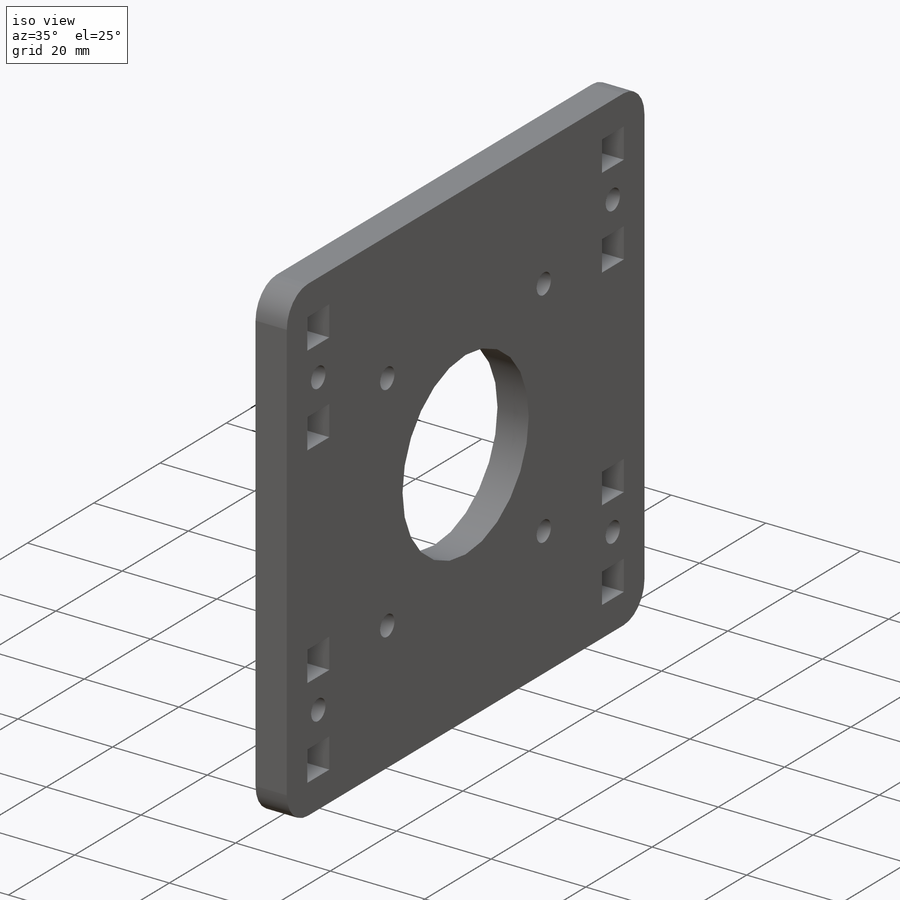
[diagram: iso view]
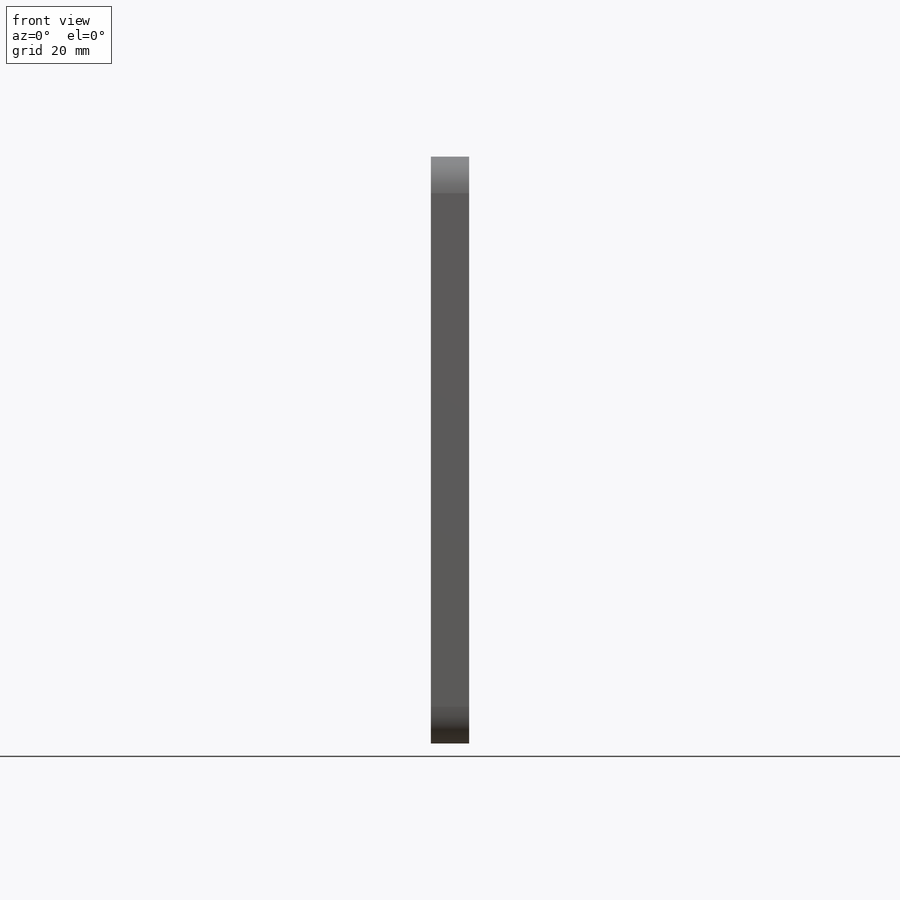
[diagram: front view]
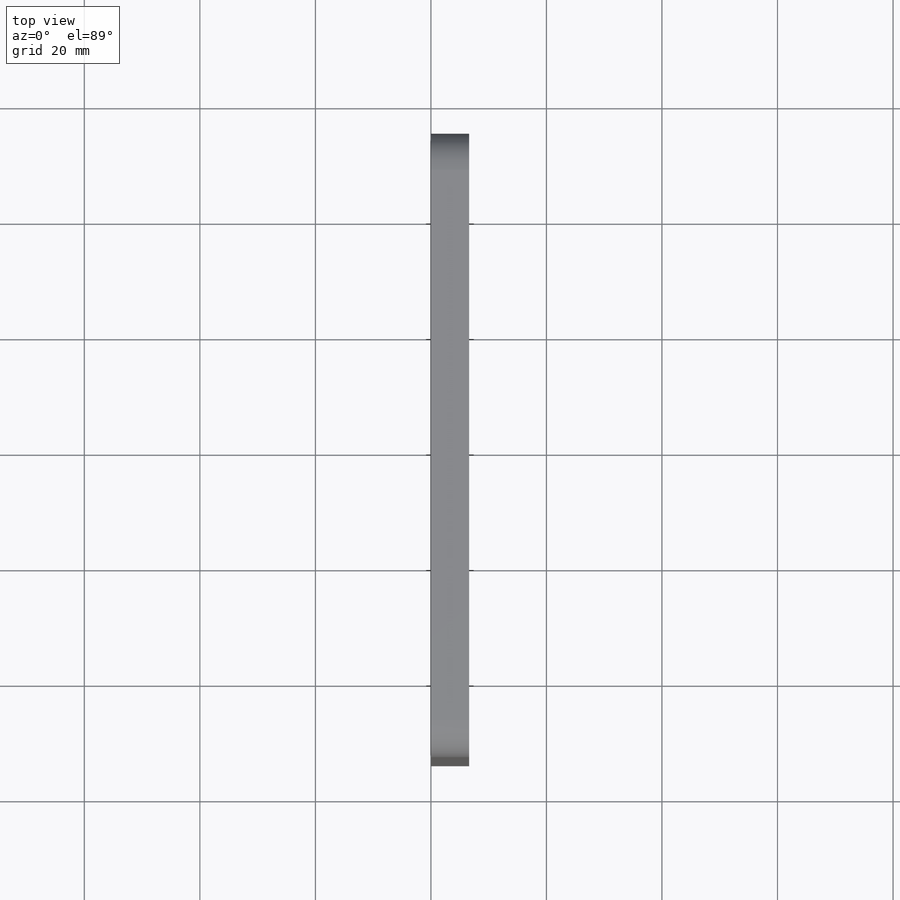
[diagram: top view]
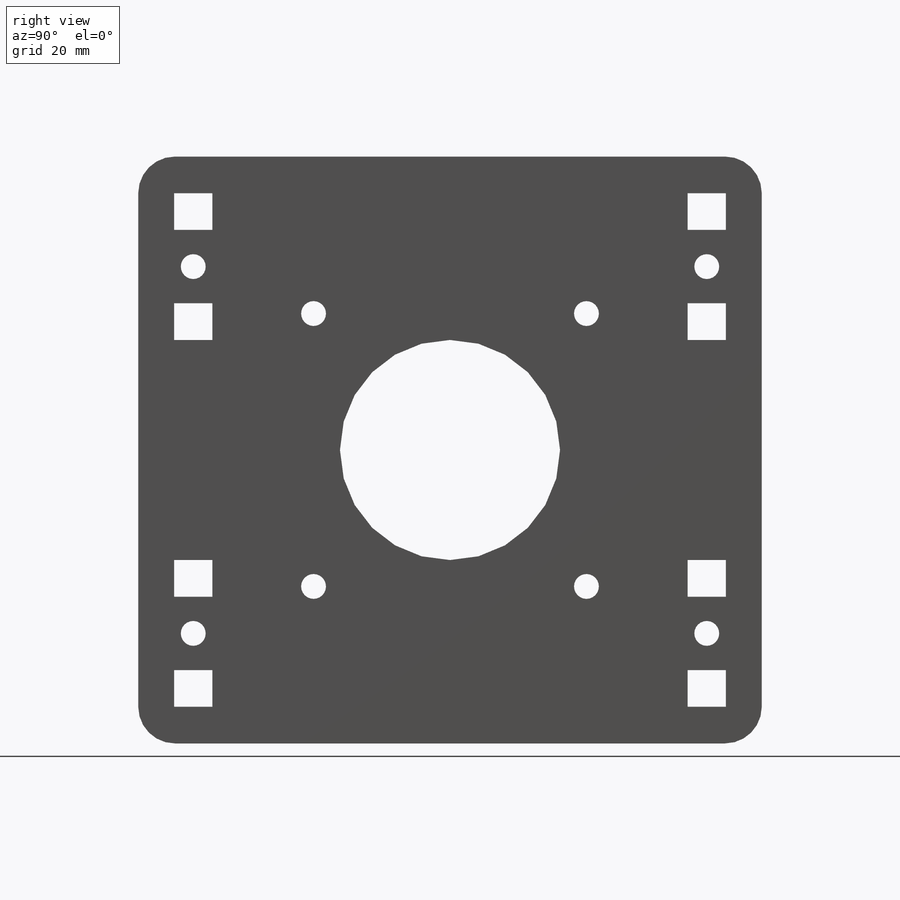
[diagram: right view]
SOLIDWORKS PART (.sldprt)
format: sldprt  version: not decoded by parser v0  size: 564,224 bytes
history: native  units: mm
features: sketch x8, hole x2, material x1, extrude x1, fillet x1 (+12 scaffold rows collapsed)
feature tree (25):
  scaffold x12  (default folders/planes/origin — collapsed)
  material  "Acrylic (Blue)"
  sketch  "Sketch1"  dims[D1=4.3053mm D2=6.35mm D3=6.604mm D4=12.7mm]
  sketch  "BOLT_HOLE-2"
  sketch  "BOLT_HOLE-3"
  sketch  "BOLT_HOLE-4"  dims[c1.D1=~28.71784mm c1.D3=38.1mm c1.D5=38.1mm c2.D1=101.6mm c2.D2=107.95mm c2.D4=9.525mm c2.D5=63.5mm]
  extrude  "Boss-Extrude1"  Depth=6.604mm
  hole  "#10-32 Tapped Hole1"  Diameter=4.0386mm Depth=12.0396mm
  sketch  "Sketch7"  dims[D1=47.244mm]
  sketch  "Sketch6"  dims[hole-wizard template sketch: 47 standard entries collapsed; hole parameters kept: c15.Tap Drill Depth=12.0396mm c15.D3=~14.816244mm c15.Drill Angle=118.0deg]
  fillet  "Fillet1"  Radius=6.35mm
  hole  "CSK for #8 Flat Head Socket Cap Screw2"  Diameter=4.3053mm Depth=6.604mm
  sketch  "Sketch11"
  sketch  "Sketch10"  dims[hole-wizard template sketch: 59 standard entries collapsed; hole parameters above]
decode coverage: 9 of 12 modeling features carry decoded parameters
note: ~ marks probable driven/reference dimensions
note: suppression state not decoded; provenance and decode notes live in map.json
